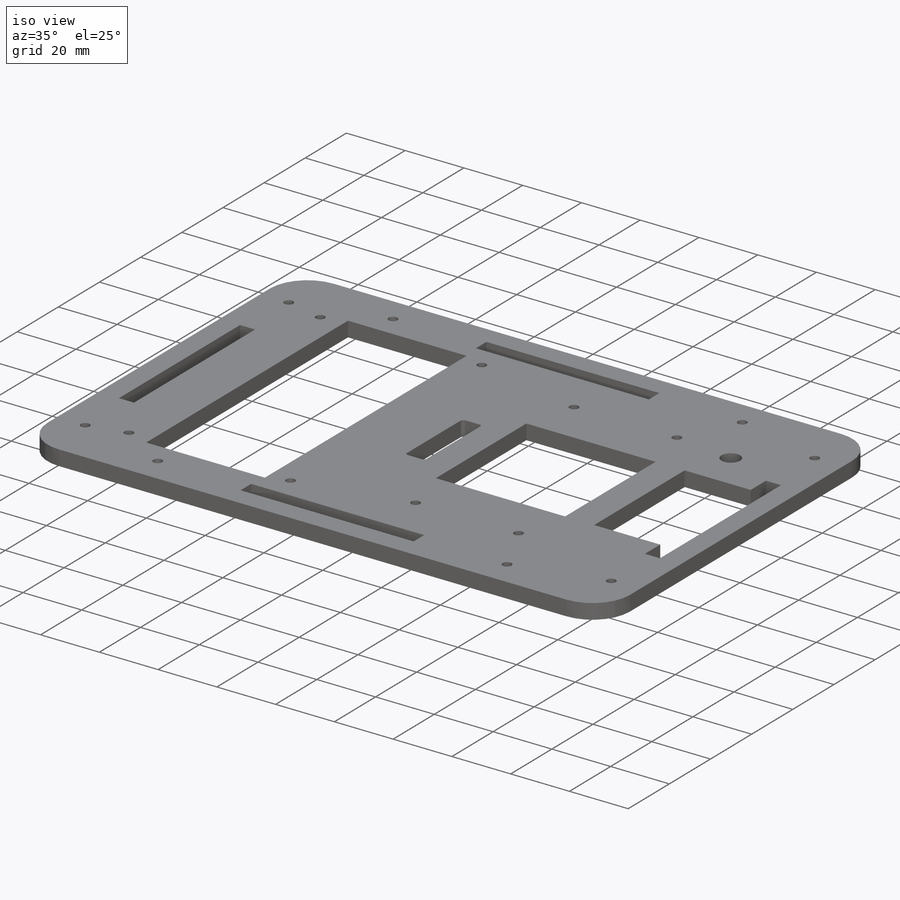
[diagram: iso view]
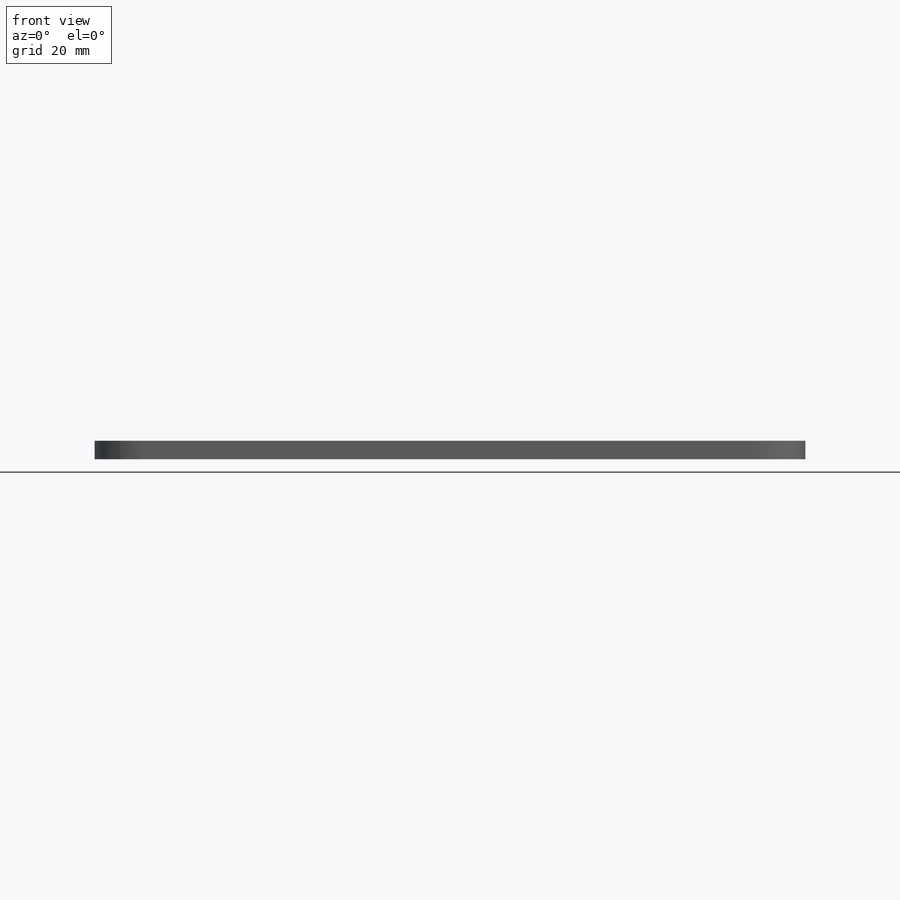
[diagram: front view]
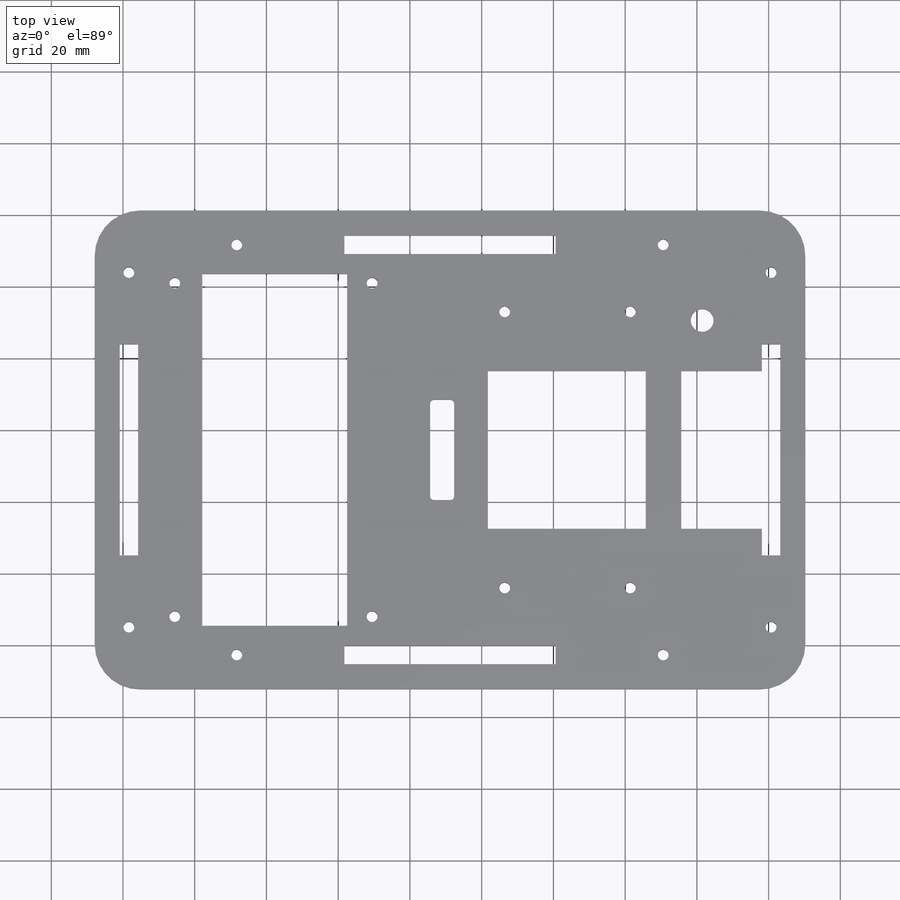
[diagram: top view]
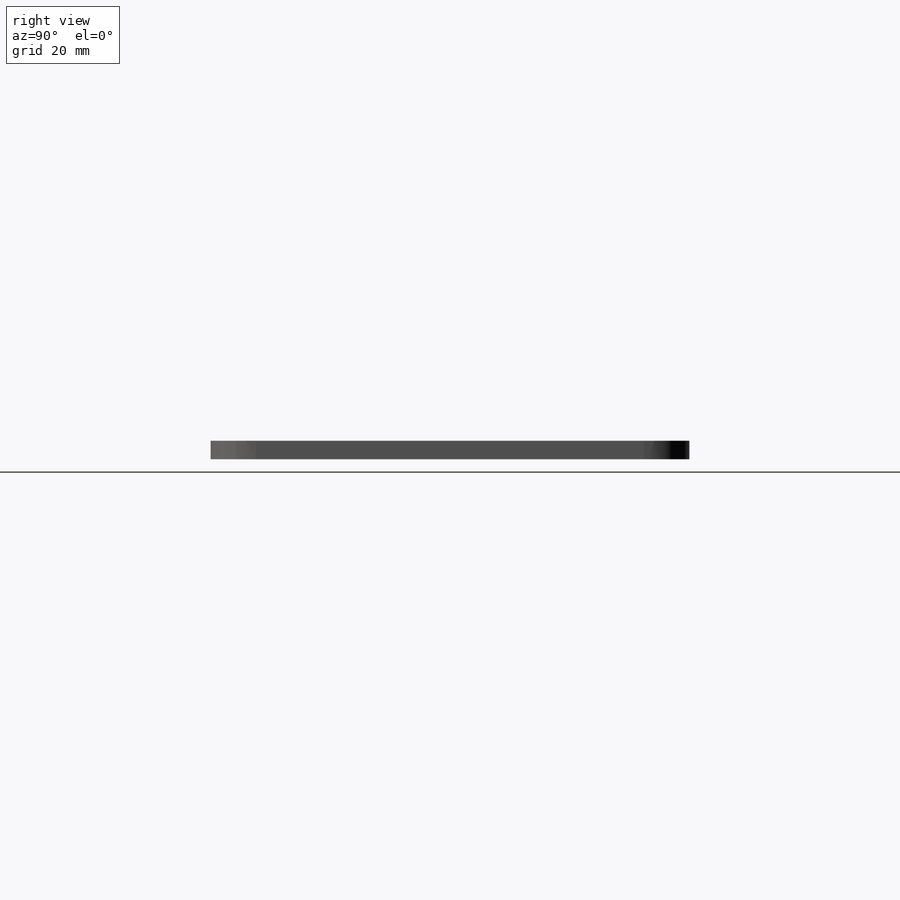
[diagram: right view]
SOLIDWORKS PART (.sldprt)
format: sldprt  version: not decoded by parser v0  size: 485,376 bytes
history: native  units: mm
features: sketch x11, cut_extrude x4, hole x3, material x1, extrude x1, plane x1, pattern_linear x1 + 1 further entry (+10 scaffold rows collapsed)
feature tree (33):
  scaffold x10  (default folders/planes/origin — collapsed)
  material  "Material <not specified>"
  "Annotations"  RD1=28.24mm RD2=77mm
  sketch  "Sketch1"  dims[D3=12.7mm D4=12.7mm D5=12.7mm D1=133.48mm D2=198.15mm]
  extrude  "Main"  Depth=5.13mm
  sketch  "Sketch2"  dims[c1.D13=3.0mm c1.D14=3.0mm c1.D15=3.0mm c1.D16=3.0mm c1.D21=3.0mm c1.D1=58.88mm c1.D2=58.88mm c1.D3=5.13mm c1.D4=5.13mm c1.D5=37.3mm c1.D6=70.115mm c1.D7=70.115mm c1.D8=7.0mm c1.D9=7.0mm c1.D10=58.88mm c2.D2=5.13mm c2.D3=7.0mm c2.D7=58.88mm c2.D9=30.0mm c2.D10=20.0mm c2.D11=20.0mm c2.D12=30.0mm c2.D17=9.56mm c2.D18=9.56mm c2.D19=9.56mm c2.D20=9.56mm c2.D21=69.155mm c2.D6=99.075mm c3.D21=7.0mm]
  cut_extrude  "Assembly slots"  [1 undecoded]
  sketch  "Sketch3"  dims[c1.D1=40.4mm c1.D2=98.1mm c1.D3=17.69mm c1.D4=30.0mm c1.D5=44.0mm c1.D6=44.0mm c1.D7=44.5mm c1.D8=44.74mm c1.D9=3.0mm c1.D10=7.7mm c1.D11=13.951mm c1.D12=58.343mm c2.D9=40.4mm]
  cut_extrude  "LCD and Block slot"  [1 undecoded]
  plane  "Plane1"
  hole  "LCD screwholes"  Diameter=3mm Depth=25.4mm
  sketch  "Sketch7"  dims[c1.D1=93.0mm c1.D3=93.0mm c1.D4=20.24mm c2.D1=2.0 c2.D2=2.0]
  sketch  "Sketch6"  dims[hole-wizard template sketch: 47 standard entries collapsed; hole parameters kept: c15.Hole Depth=25.4mm c15.D3=~14.816244mm c15.Drill Angle=118.0deg]
  hole  "Core screwholes"  Diameter=3mm Depth=25.4mm
  sketch  "Sketch9"  dims[D1=70.0mm D2=28.24mm D3=70.0mm D4=31.74mm D5=~35.16147mm D6=~35.16147mm D7=~31.751929mm]
  sketch  "Sketch8"  dims[hole-wizard template sketch: 47 standard entries collapsed; hole parameters kept: c15.Hole Depth=25.4mm c15.D3=~14.816244mm c15.Drill Angle=118.0deg]
  pattern_linear  "Core screwholes pattern"  Count1=2 Count2=2 Spacing1=35mm Spacing2=77mm
  sketch  "Sketch11"  dims[D1=22.5mm D2=44.0mm D3=44.74mm]
  cut_extrude  "Hinge slot"  [1 undecoded]
  sketch  "Sketch13"  dims[D3=1.0mm D1=27.94mm D2=52.77mm D4=6.7mm]
  cut_extrude  "Latch Slot"  [1 undecoded]
  hole  "Lid thermistor hole"  Diameter=6.35mm Depth=7.6mm
  sketch  "Sketch15"
  sketch  "Sketch14"  dims[hole-wizard template sketch: 47 standard entries collapsed; hole parameters kept: c15.Hole Depth=7.6mm c15.D3=~14.816244mm c15.Drill Angle=118.0deg]
decode coverage: 15 of 20 modeling features carry decoded parameters; 1 rows unclassified (native names shown)
note: ~ marks probable driven/reference dimensions
note: 4 parameter values undecoded
summary: no parameter record found for 4 features
note: suppression state not decoded; provenance and decode notes live in map.json
